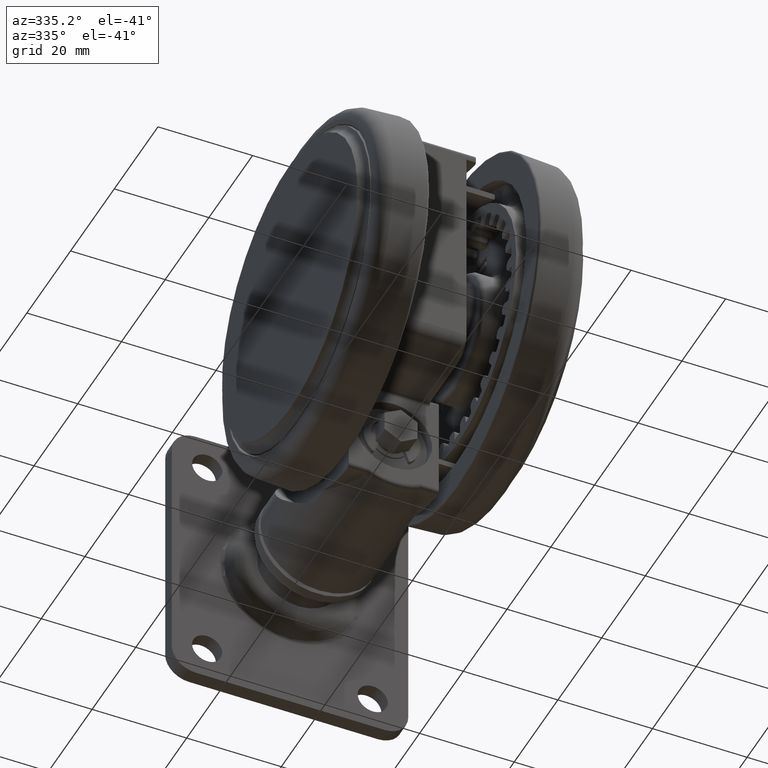
[diagram: clean part render]
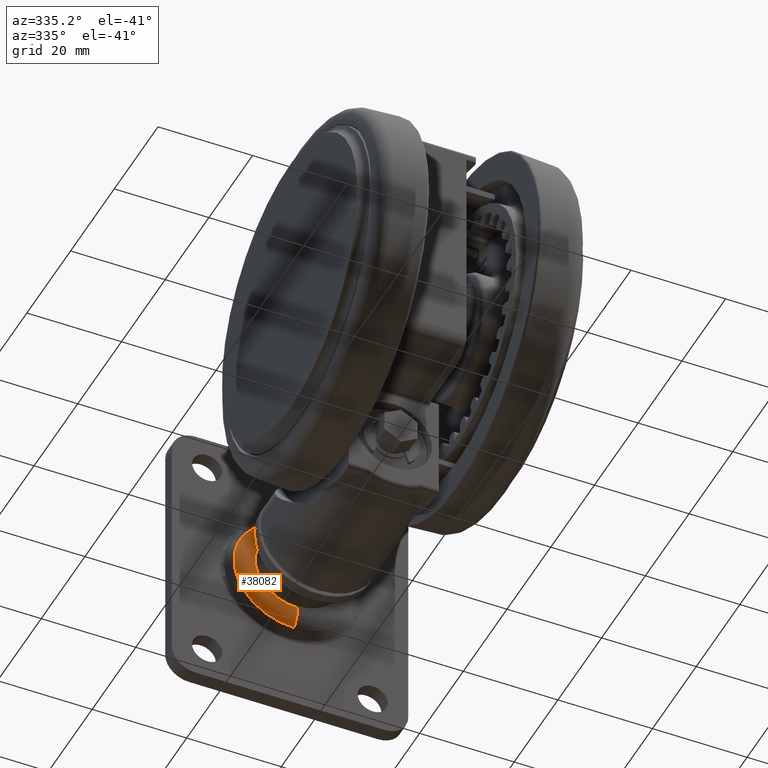
[diagram: same view with one face highlighted and labeled with its STEP entity id]
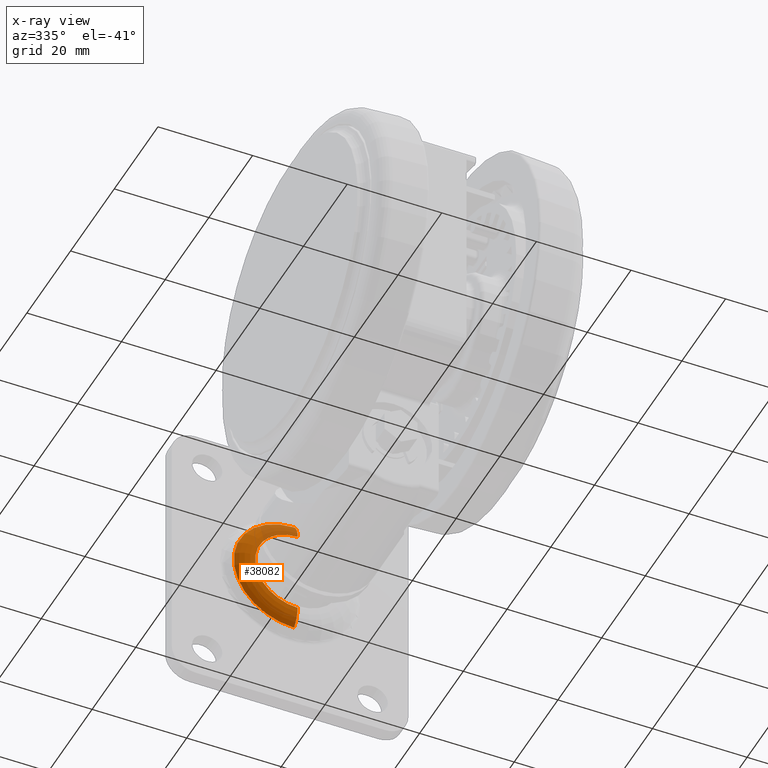
[diagram: x-ray of the same camera — body ghosted, the highlighted face saturated]
A machine part, auxiliary view. The second image highlights one B-rep face of the part: STEP entity #38082.
The next image is the same camera in x-ray: the body ghosted, the highlighted face saturated — about 15% of this face is hidden behind the body in this view.
In plain terms, the highlighted toroidal blend (fillet) surface has major radius 9.0137 mm and minor (blend) radius 5 mm.
Its self-contained STEP definition (entity closure, byte-faithful):
#921 = AXIS2_PLACEMENT_3D ( 'NONE', #12589, #44495, #17161 ) ;
#2156 = CIRCLE ( 'NONE', #6861, 5.000000000000000900 ) ;
#2438 = EDGE_CURVE ( 'NONE', #41737, #56154, #58954, .T. ) ;
#3321 = CIRCLE ( 'NONE', #33994, 12.74073817057500000 ) ;
#3512 = VERTEX_POINT ( 'NONE', #23347 ) ;
#4788 = ORIENTED_EDGE ( 'NONE', *, *, #2438, .F. ) ;
#6861 = AXIS2_PLACEMENT_3D ( 'NONE', #7861, #39735, #12413 ) ;
#7861 = CARTESIAN_POINT ( 'NONE',  ( -53.00000000000008500, 16.98630379274539600, -23.84999999999999800 ) ) ;
#8265 = EDGE_CURVE ( 'NONE', #36097, #3512, #2156, .T. ) ;
#10990 = FACE_OUTER_BOUND ( 'NONE', #33953, .T. ) ;
#12363 = CARTESIAN_POINT ( 'NONE',  ( -53.00000000000013500, 35.01369620725425600, -23.84999999999999800 ) ) ;
#12413 = DIRECTION ( 'NONE',  ( 0.0000000000000000000, 1.000000000000000000, 0.0000000000000000000 ) ) ;
#12589 = CARTESIAN_POINT ( 'NONE',  ( -48.00000000000011400, 25.99999999999984400, -23.84999999999999800 ) ) ;
#13026 = AXIS2_PLACEMENT_3D ( 'NONE', #12363, #44246, #16933 ) ;
#13573 = DIRECTION ( 'NONE',  ( -1.000000000000000000, -3.275157922644200400E-015, -7.888609052210118100E-031 ) ) ;
#13624 = CARTESIAN_POINT ( 'NONE',  ( -48.00000000000008500, 16.98630379274541400, -23.84999999999999800 ) ) ;
#16933 = DIRECTION ( 'NONE',  ( 1.000000000000000000, 0.0000000000000000000, 0.0000000000000000000 ) ) ;
#17161 = DIRECTION ( 'NONE',  ( -3.079266815459188300E-015, 1.000000000000000000, 0.0000000000000000000 ) ) ;
#20489 = AXIS2_PLACEMENT_3D ( 'NONE', #40891, #13573, #45456 ) ;
#21631 = TOROIDAL_SURFACE ( 'NONE', #20489, 9.013696207254430000, 5.000000000000000000 ) ;
#23347 = CARTESIAN_POINT ( 'NONE',  ( -49.66695961565911700, 13.25926182942483900, -23.84999999999999800 ) ) ;
#24899 = CARTESIAN_POINT ( 'NONE',  ( -48.00000000000014200, 35.01369620725427000, -23.84999999999999800 ) ) ;
#25595 = CARTESIAN_POINT ( 'NONE',  ( -49.66695961565916000, 25.99999999999984000, -23.84999999999999800 ) ) ;
#29443 = ORIENTED_EDGE ( 'NONE', *, *, #47206, .F. ) ;
#30214 = DIRECTION ( 'NONE',  ( 3.267735579057459300E-015, -1.000000000000000000, 0.0000000000000000000 ) ) ;
#33953 = EDGE_LOOP ( 'NONE', ( #42002, #37093, #29443, #4788 ) ) ;
#33994 = AXIS2_PLACEMENT_3D ( 'NONE', #25595, #57484, #30214 ) ;
#34942 = EDGE_CURVE ( 'NONE', #36097, #41737, #51601, .T. ) ;
#36097 = VERTEX_POINT ( 'NONE', #13624 ) ;
#37093 = ORIENTED_EDGE ( 'NONE', *, *, #8265, .T. ) ;
#38082 = ADVANCED_FACE ( 'NONE', ( #10990 ), #21631, .T. ) ;
#39735 = DIRECTION ( 'NONE',  ( 3.877697385541803900E-031, 1.224646799147353200E-016, -1.000000000000000000 ) ) ;
#40891 = CARTESIAN_POINT ( 'NONE',  ( -53.00000000000010700, 25.99999999999982600, -23.84999999999999800 ) ) ;
#41121 = CARTESIAN_POINT ( 'NONE',  ( -49.66695961565920200, 38.74073817057484300, -23.84999999999999800 ) ) ;
#41737 = VERTEX_POINT ( 'NONE', #24899 ) ;
#42002 = ORIENTED_EDGE ( 'NONE', *, *, #34942, .F. ) ;
#44246 = DIRECTION ( 'NONE',  ( -7.888609052210118100E-031, -5.337937173120938400E-045, 1.000000000000000000 ) ) ;
#44495 = DIRECTION ( 'NONE',  ( 1.000000000000000000, 3.275157922644200400E-015, 7.888609052210118100E-031 ) ) ;
#45456 = DIRECTION ( 'NONE',  ( -3.275157922644200400E-015, 1.000000000000000000, 1.505921148848820600E-046 ) ) ;
#47206 = EDGE_CURVE ( 'NONE', #56154, #3512, #3321, .T. ) ;
#51601 = CIRCLE ( 'NONE', #921, 9.013696207254430000 ) ;
#56154 = VERTEX_POINT ( 'NONE', #41121 ) ;
#57484 = DIRECTION ( 'NONE',  ( -1.000000000000000000, -3.275157922644200400E-015, -7.888609052210118100E-031 ) ) ;
#58954 = CIRCLE ( 'NONE', #13026, 4.999999999999997300 ) ;